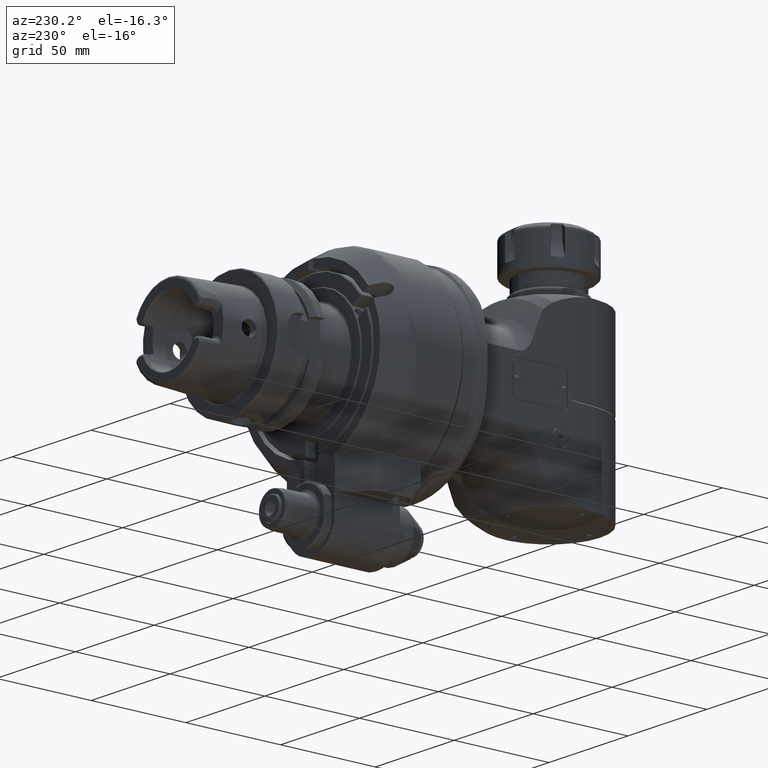
[diagram: clean part render]
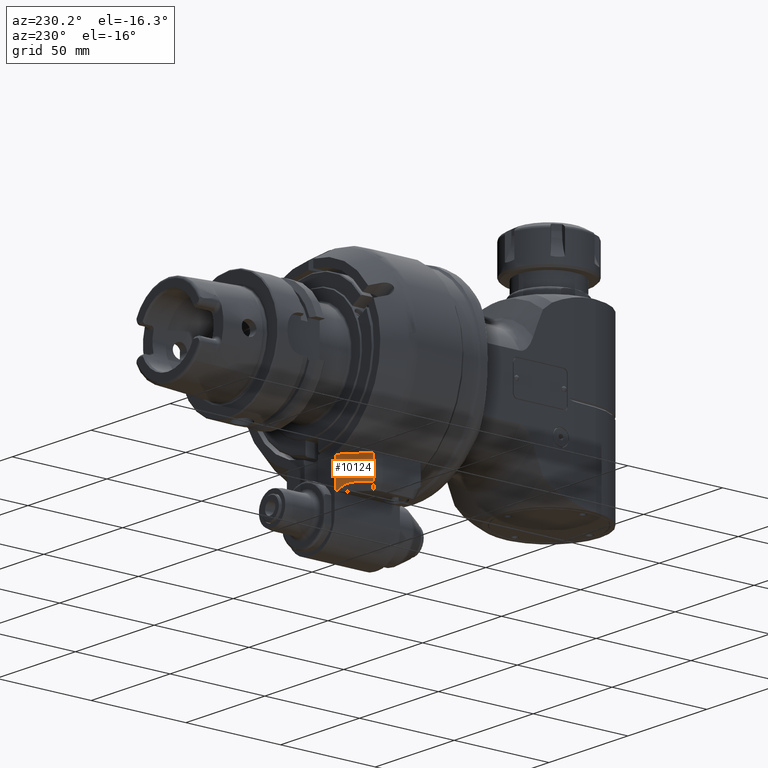
[diagram: same view with one face highlighted and labeled with its STEP entity id]
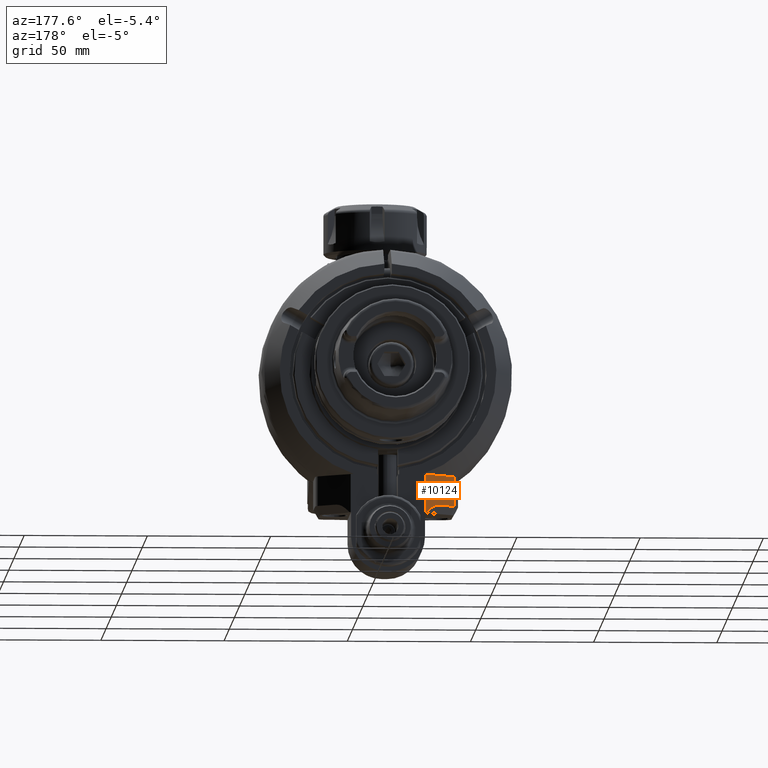
[diagram: same view with one face highlighted and labeled with its STEP entity id]
A machine part, auxiliary view. The second image highlights one B-rep face of the part: STEP entity #10124.
A second angle (auxiliary view) of the same face is appended — the face is thin or edge-on in the first view.
In plain terms, the highlighted planar face has unit normal (-0.6428, 0.766, -0).
Its self-contained STEP definition (entity closure, byte-faithful):
#476=(
BOUNDED_CURVE()
B_SPLINE_CURVE(2,(#18538,#18539,#18540),.UNSPECIFIED.,.F.,.F.)
B_SPLINE_CURVE_WITH_KNOTS((3,3),(-1.72603742246312,-0.91256123534167),
 .UNSPECIFIED.)
CURVE()
GEOMETRIC_REPRESENTATION_ITEM()
RATIONAL_B_SPLINE_CURVE((1.02406032556474,1.11715671879784,1.11715671879796))
REPRESENTATION_ITEM('')
);
#1721=FACE_OUTER_BOUND('',#2356,.T.);
#2356=EDGE_LOOP('',(#8512,#8513,#8514,#8515,#8516,#8517));
#2983=LINE('',#18451,#3610);
#2996=LINE('',#18514,#3623);
#3004=LINE('',#18535,#3631);
#3005=LINE('',#18541,#3632);
#3006=LINE('',#18542,#3633);
#3610=VECTOR('',#13725,15.5024588697499);
#3623=VECTOR('',#13764,0.370290646033097);
#3631=VECTOR('',#13784,12.03589838909);
#3632=VECTOR('',#13787,8.20396499672106);
#3633=VECTOR('',#13788,15.5);
#4523=VERTEX_POINT('',#18448);
#4524=VERTEX_POINT('',#18450);
#4548=VERTEX_POINT('',#18511);
#4549=VERTEX_POINT('',#18513);
#4556=VERTEX_POINT('',#18529);
#4557=VERTEX_POINT('',#18537);
#5873=EDGE_CURVE('',#4523,#4524,#2983,.T.);
#5900=EDGE_CURVE('',#4548,#4549,#2996,.T.);
#5912=EDGE_CURVE('',#4524,#4556,#3004,.T.);
#5913=EDGE_CURVE('',#4548,#4557,#476,.T.);
#5914=EDGE_CURVE('',#4556,#4557,#3005,.T.);
#5915=EDGE_CURVE('',#4549,#4523,#3006,.T.);
#8512=ORIENTED_EDGE('',*,*,#5913,.T.);
#8513=ORIENTED_EDGE('',*,*,#5914,.F.);
#8514=ORIENTED_EDGE('',*,*,#5912,.F.);
#8515=ORIENTED_EDGE('',*,*,#5873,.F.);
#8516=ORIENTED_EDGE('',*,*,#5915,.F.);
#8517=ORIENTED_EDGE('',*,*,#5900,.F.);
#9347=PLANE('',#11344);
#10124=ADVANCED_FACE('',(#1721),#9347,.T.);
#11344=AXIS2_PLACEMENT_3D('',#18536,#13785,#13786);
#13725=DIRECTION('',(0.642787609686505,0.,-0.766044443119006));
#13764=DIRECTION('',(-0.642787609686505,0.,0.766044443119006));
#13784=DIRECTION('',(2.504247427587E-10,1.,-1.454830232723E-10));
#13785=DIRECTION('center_axis',(-0.766044443119007,0.,-0.642787609686505));
#13786=DIRECTION('ref_axis',(0.642787609686505,0.,-0.766044443119007));
#13787=DIRECTION('',(-0.642787609796995,-5.15014900744396E-10,0.766044443026294));
#13788=DIRECTION('',(-1.604451338813E-14,-1.,2.349375174691E-14));
#18448=CARTESIAN_POINT('',(-51.38302222156,41.75,-15.33836557658));
#18450=CARTESIAN_POINT('',(-41.41823374041,41.75,-27.21393804843));
#18451=CARTESIAN_POINT('',(-51.38302222156,41.75,-15.33836557658));
#18511=CARTESIAN_POINT('',(-51.14500398231,57.25,-15.62202466831));
#18513=CARTESIAN_POINT('',(-51.38302222156,57.25,-15.33836557658));
#18514=CARTESIAN_POINT('',(-51.14500398231,57.25,-15.62202466831));
#18529=CARTESIAN_POINT('',(-41.4182337366007,53.7858983905508,-27.2139380495162));
#18535=CARTESIAN_POINT('',(-41.41823374041,41.75,-27.21393804843));
#18536=CARTESIAN_POINT('Origin',(-45.5,49.5,-22.34947844443));
#18537=CARTESIAN_POINT('',(-46.6916407885,53.78589838486,-20.92933625366));
#18538=CARTESIAN_POINT('Ctrl Pts',(-51.1450039823025,57.2500000000068,-15.6220246683118));
#18539=CARTESIAN_POINT('Ctrl Pts',(-48.7327655856559,53.7858983848699,-18.4968184437093));
#18540=CARTESIAN_POINT('Ctrl Pts',(-46.6916407884937,53.7858983848661,-20.9293362536608));
#18541=CARTESIAN_POINT('',(-41.41823373739,53.78589838909,-27.21393805018));
#18542=CARTESIAN_POINT('',(-51.38302222156,57.25,-15.33836557658));